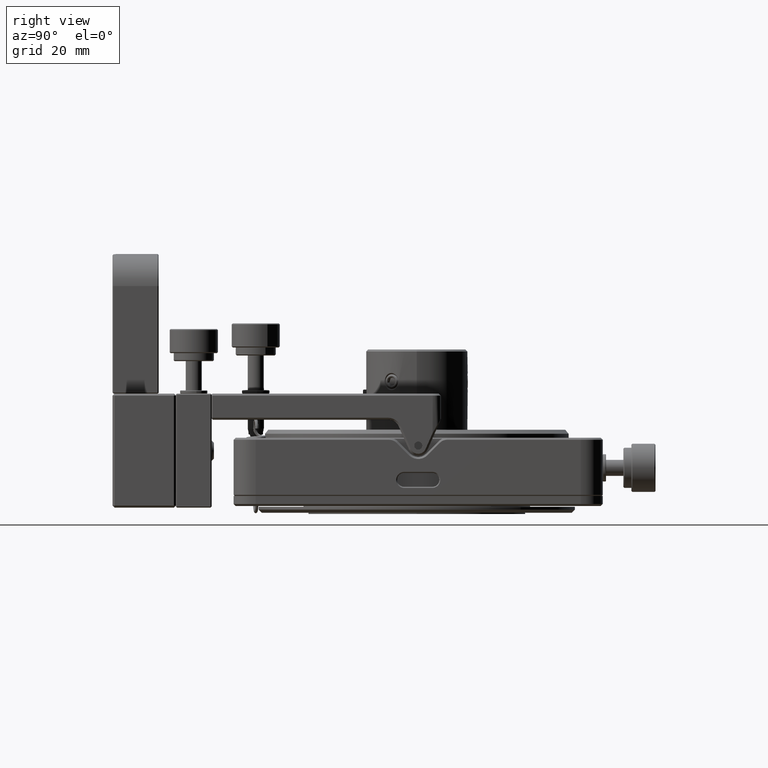
[diagram: clean part render]
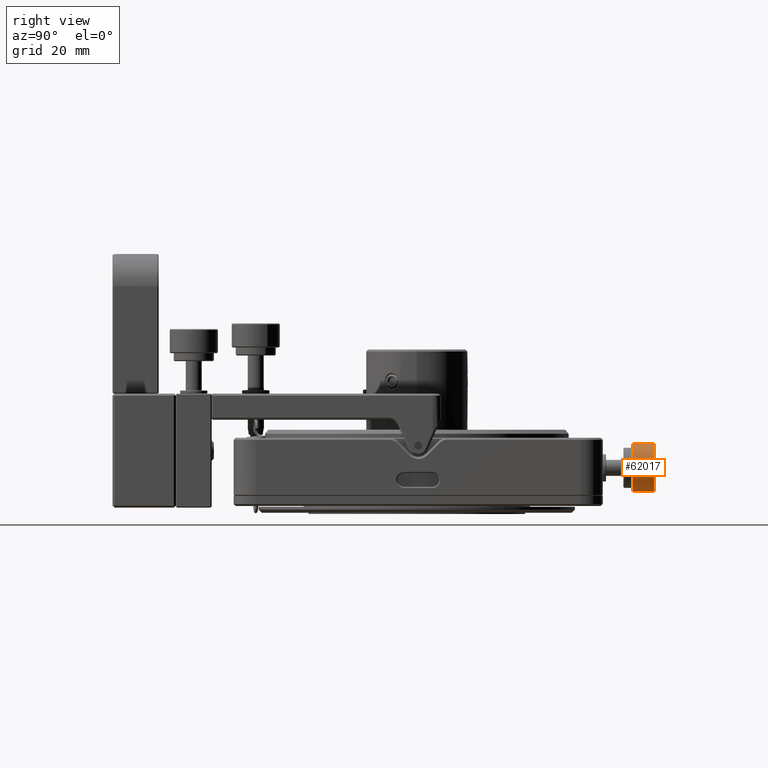
[diagram: same view with one face highlighted and labeled with its STEP entity id]
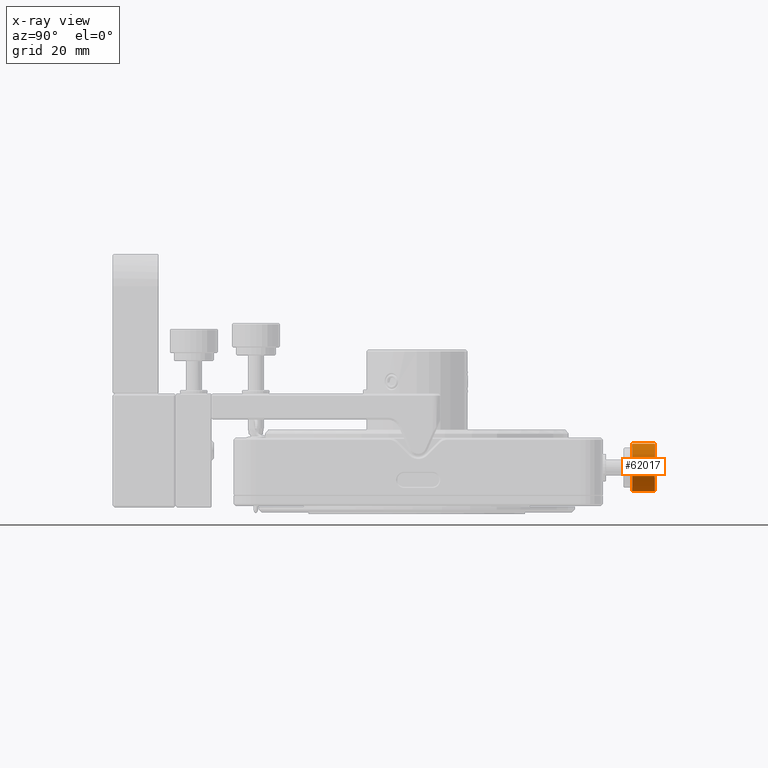
[diagram: x-ray of the same camera — body ghosted, the highlighted face saturated]
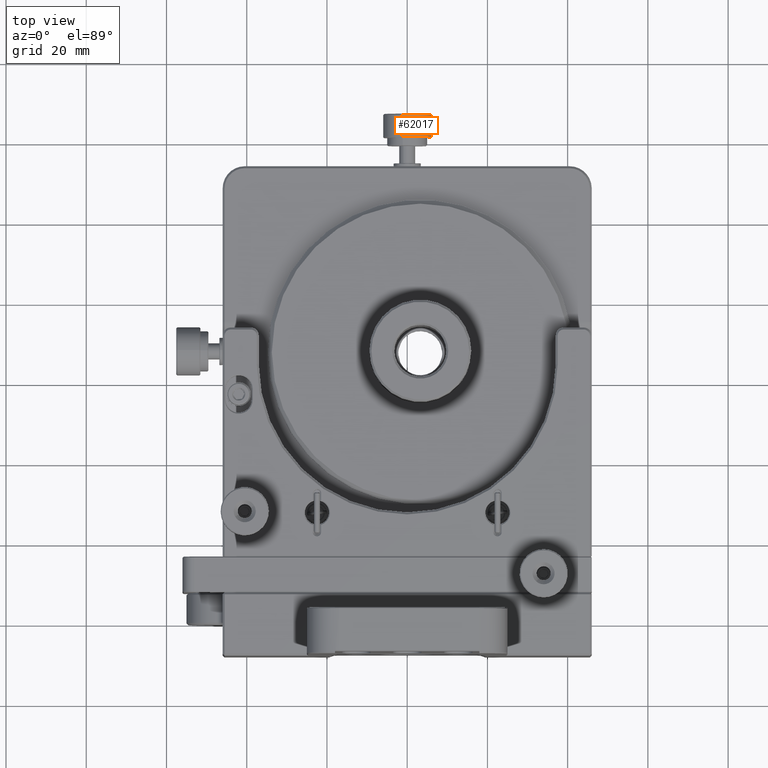
[diagram: same view with one face highlighted and labeled with its STEP entity id]
A machine part, right view. The second image highlights one B-rep face of the part: STEP entity #62017.
The next image is the same camera in x-ray: the body ghosted, the highlighted face saturated — about 0% of this face is hidden behind the body in this view.
A second angle (top view) of the same face is appended — the face is thin or edge-on in the first view.
In plain terms, the highlighted cylindrical surface (edge-blend (fillet) strip) has radius 6 mm, axis along (-0, 1, 0).
Its self-contained STEP definition (entity closure, byte-faithful):
#16247 = DIRECTION ( 'NONE',  ( -1.142261054461871192E-16, 1.000000000000000000, 4.235669769260707563E-16 ) ) ;
#16513 = VERTEX_POINT ( 'NONE', #21246 ) ;
#17405 = DIRECTION ( 'NONE',  ( 1.142261054461871192E-16, -1.000000000000000000, -4.235669769260707563E-16 ) ) ;
#21246 = CARTESIAN_POINT ( 'NONE',  ( -1.322478572326249546, 127.1882270730852156, 1.552439698599048512 ) ) ;
#28402 = ORIENTED_EDGE ( 'NONE', *, *, #96917, .T. ) ;
#29864 = CARTESIAN_POINT ( 'NONE',  ( 2.305381088581106067E-15, 127.1882270730852156, -4.299999999999983835 ) ) ;
#30020 = AXIS2_PLACEMENT_3D ( 'NONE', #29864, #17405, #60085 ) ;
#30852 = EDGE_LOOP ( 'NONE', ( #69121, #175397, #28402, #86376 ) ) ;
#35519 = CYLINDRICAL_SURFACE ( 'NONE', #91846, 6.000000000000000888 ) ;
#36125 = LINE ( 'NONE', #50351, #52065 ) ;
#42808 = CIRCLE ( 'NONE', #96810, 6.000000000000002665 ) ;
#48376 = VERTEX_POINT ( 'NONE', #175046 ) ;
#50351 = CARTESIAN_POINT ( 'NONE',  ( -1.322478572326249324, 121.4382270730852156, 1.552439698599046736 ) ) ;
#52065 = VECTOR ( 'NONE', #104635, 1000.000000000000000 ) ;
#60085 = DIRECTION ( 'NONE',  ( -0.2204130953877085353, 0.000000000000000000, 0.9754066164331717248 ) ) ;
#62017 = ADVANCED_FACE ( 'NONE', ( #88932 ), #35519, .T. ) ;
#62427 = CARTESIAN_POINT ( 'NONE',  ( 1.322478572326254209, 121.6882270730852298, -10.15243969859901796 ) ) ;
#62965 = LINE ( 'NONE', #92243, #81006 ) ;
#64692 = DIRECTION ( 'NONE',  ( -1.142261054461871192E-16, 1.000000000000000000, 4.235669769260707563E-16 ) ) ;
#66595 = EDGE_CURVE ( 'NONE', #48376, #16513, #36125, .T. ) ;
#69121 = ORIENTED_EDGE ( 'NONE', *, *, #66595, .F. ) ;
#81006 = VECTOR ( 'NONE', #64692, 1000.000000000000000 ) ;
#86376 = ORIENTED_EDGE ( 'NONE', *, *, #137114, .T. ) ;
#88932 = FACE_OUTER_BOUND ( 'NONE', #30852, .T. ) ;
#91556 = DIRECTION ( 'NONE',  ( -1.142261054461871192E-16, 1.000000000000000000, 4.235669769260707563E-16 ) ) ;
#91846 = AXIS2_PLACEMENT_3D ( 'NONE', #117401, #91556, #143234 ) ;
#92243 = CARTESIAN_POINT ( 'NONE',  ( 1.322478572326254653, 121.4382270730852156, -10.15243969859901796 ) ) ;
#95455 = CARTESIAN_POINT ( 'NONE',  ( 2.933624668535135074E-15, 121.6882270730852298, -4.299999999999986500 ) ) ;
#96810 = AXIS2_PLACEMENT_3D ( 'NONE', #95455, #16247, #166630 ) ;
#96917 = EDGE_CURVE ( 'NONE', #173415, #136279, #62965, .T. ) ;
#101143 = CIRCLE ( 'NONE', #30020, 6.000000000000002665 ) ;
#104635 = DIRECTION ( 'NONE',  ( -1.142261054461871192E-16, 1.000000000000000000, 4.235669769260707563E-16 ) ) ;
#117401 = CARTESIAN_POINT ( 'NONE',  ( 2.962181194896681829E-15, 121.4382270730852156, -4.299999999999986500 ) ) ;
#136279 = VERTEX_POINT ( 'NONE', #164282 ) ;
#137114 = EDGE_CURVE ( 'NONE', #136279, #16513, #101143, .T. ) ;
#143234 = DIRECTION ( 'NONE',  ( 0.2204130953877085908, 0.000000000000000000, -0.9754066164331719468 ) ) ;
#164282 = CARTESIAN_POINT ( 'NONE',  ( 1.322478572326253543, 127.1882270730852156, -10.15243969859901441 ) ) ;
#166630 = DIRECTION ( 'NONE',  ( -0.2204130953877085353, 0.000000000000000000, 0.9754066164331717248 ) ) ;
#173131 = EDGE_CURVE ( 'NONE', #48376, #173415, #42808, .T. ) ;
#173415 = VERTEX_POINT ( 'NONE', #62427 ) ;
#175046 = CARTESIAN_POINT ( 'NONE',  ( -1.322478572326249102, 121.6882270730852298, 1.552439698599045848 ) ) ;
#175397 = ORIENTED_EDGE ( 'NONE', *, *, #173131, .T. ) ;